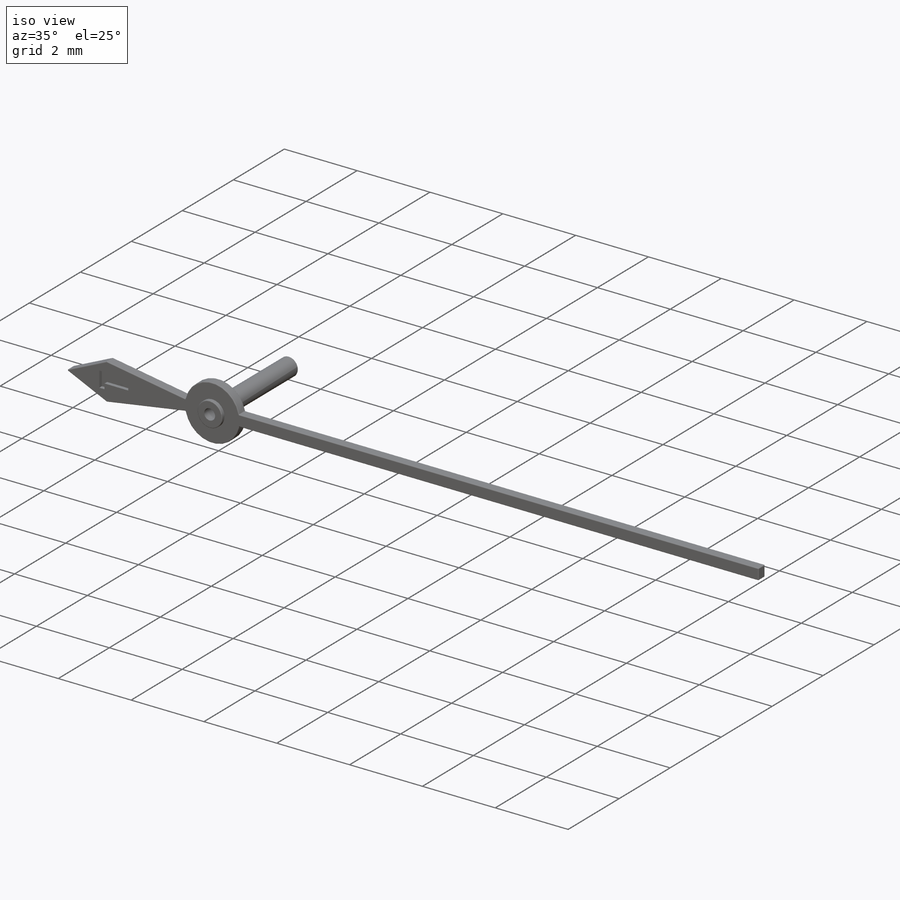
[diagram: iso view]
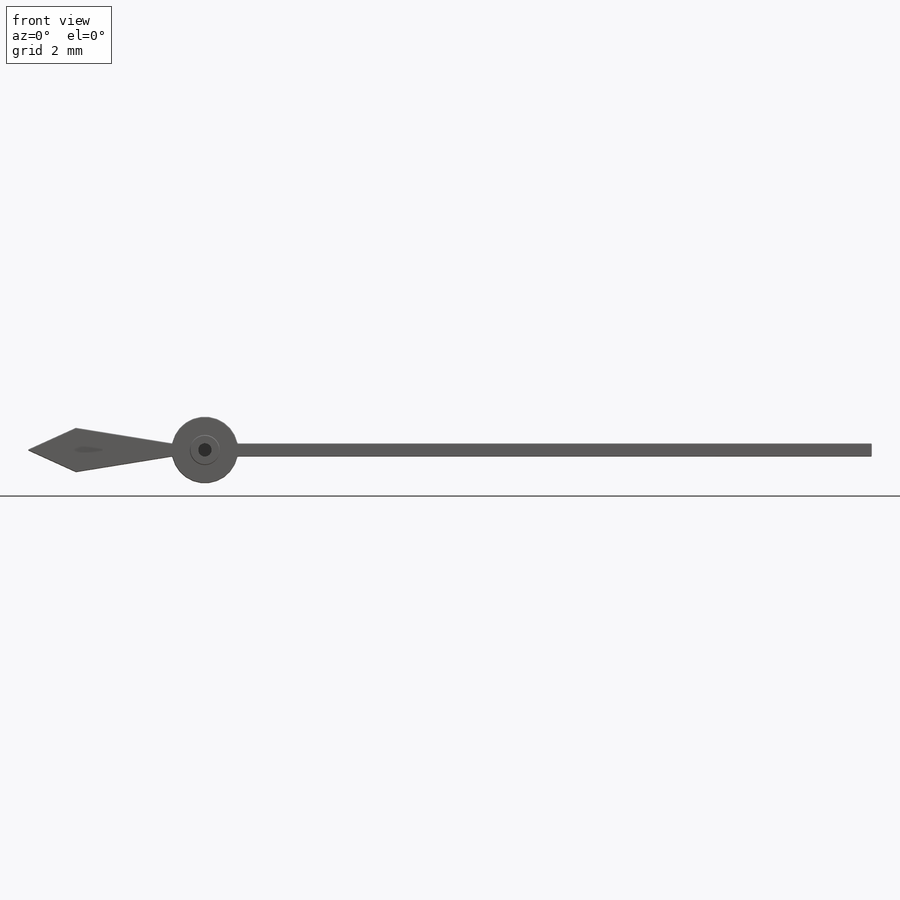
[diagram: front view]
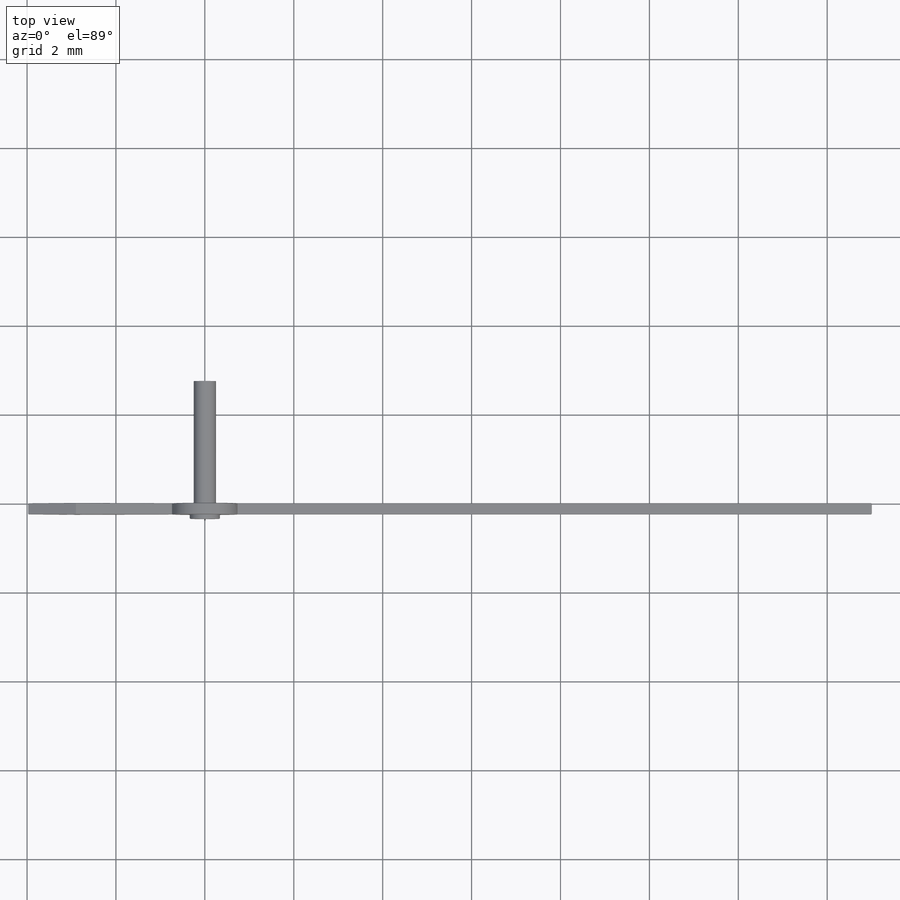
[diagram: top view]
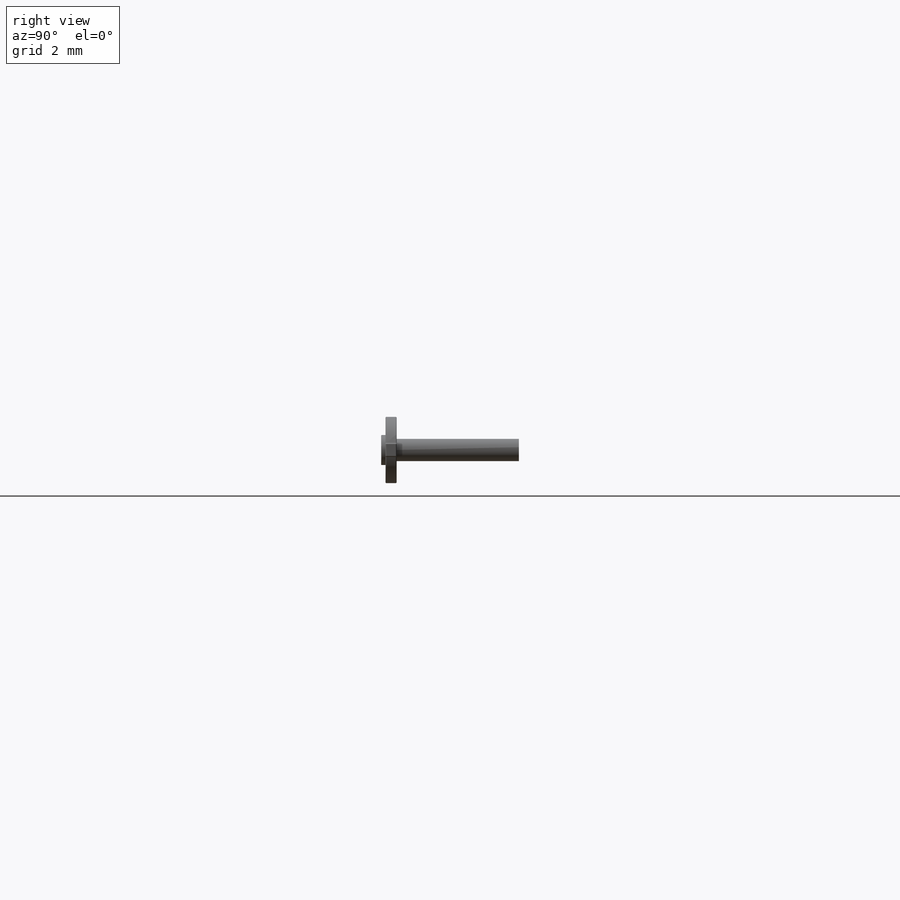
[diagram: right view]
SOLIDWORKS PART (.sldprt)
format: sldprt  version: not decoded by parser v0  size: 301,056 bytes
history: native  units: mm
features: sketch x5, extrude x3, fillet x2, cut_extrude x2, material x1 (+11 scaffold rows collapsed)
feature tree (24):
  scaffold x11  (default folders/planes/origin — collapsed)
  material  "Material <not specified>"
  sketch  "Sketch1"  dims[D3=1.5mm D4=0.5mm D1=19.0mm D2=4.0mm D7=0.5mm D8=1.0mm D9=2.9mm D5=0.15mm D6=0.15mm]
  extrude  "Boss-Extrude1"  Depth=0.25mm
  fillet  "Fillet1"  Radius=0.02mm
  sketch  "Sketch2"
  cut_extrude  "Cut-Extrude1"  Depth=0.1mm
  sketch  "Sketch3"
  extrude  "Boss-Extrude2"  Depth=0.1mm
  sketch  "Sketch4"  dims[D1=0.5mm]
  extrude  "Boss-Extrude3"  Depth=3mm
  fillet  "Fillet2"  Radius=0.02mm
  sketch  "Sketch5"  dims[D1=0.3mm]
  cut_extrude  "Cut-Extrude2"  Depth=0.5mm
decode coverage: 10 of 12 modeling features carry decoded parameters
note: suppression state not decoded; provenance and decode notes live in map.json
